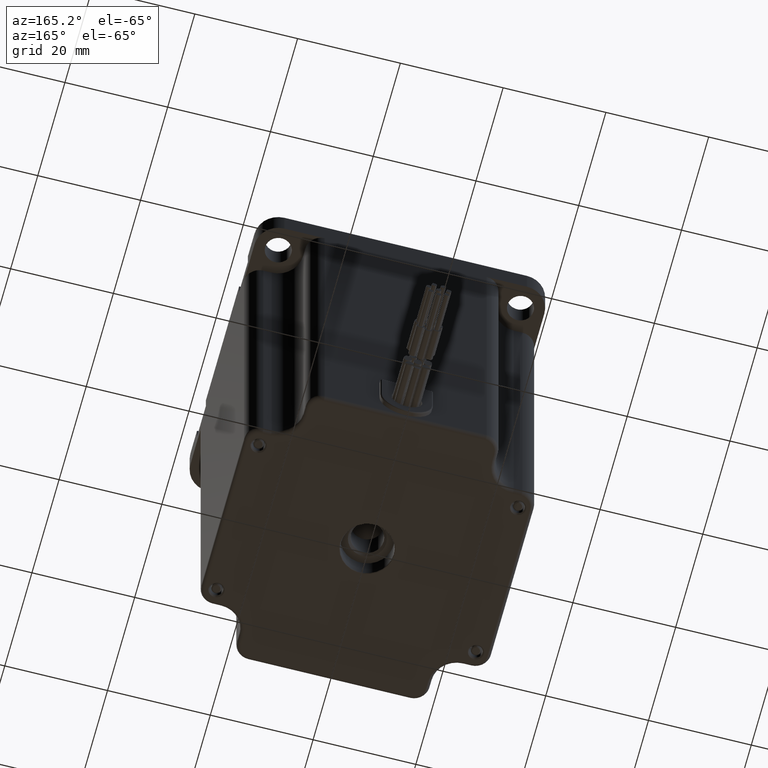
[diagram: clean part render]
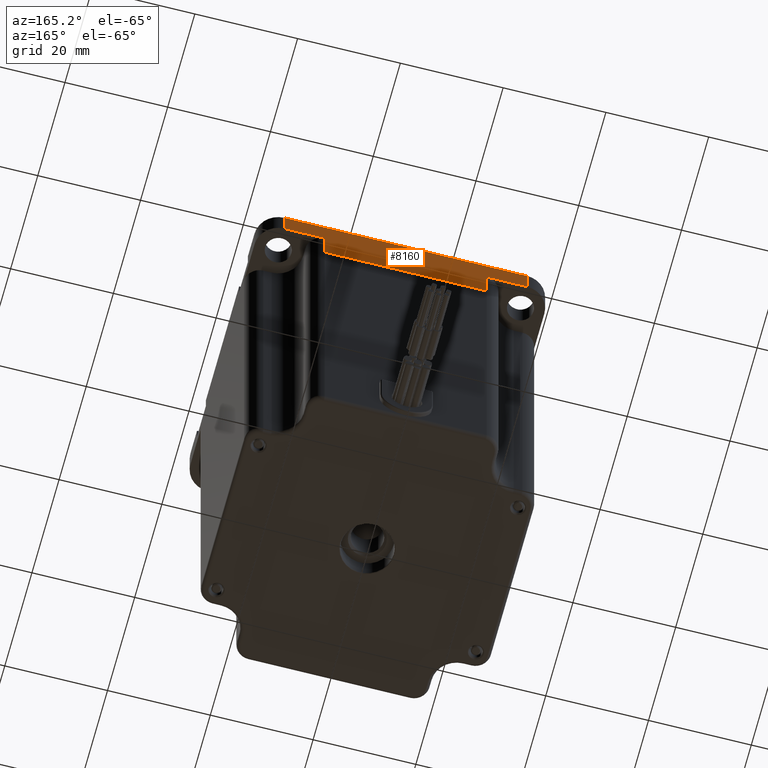
[diagram: same view with one face highlighted and labeled with its STEP entity id]
A machine part, auxiliary view. The second image highlights one B-rep face of the part: STEP entity #8160.
In plain terms, the highlighted planar face has unit normal (-0, 1, 0).
Its self-contained STEP definition (entity closure, byte-faithful):
#119 = CARTESIAN_POINT ( 'NONE',  ( 28.19999999999999900, 28.19999999999999600, -11.00000000000000000 ) ) ;
#144 = LINE ( 'NONE', #7201, #11866 ) ;
#216 = CARTESIAN_POINT ( 'NONE',  ( -15.75000000000000700, 28.19999999999998900, -4.799999999999999800 ) ) ;
#728 = DIRECTION ( 'NONE',  ( -0.0000000000000000000, -0.0000000000000000000, -1.000000000000000000 ) ) ;
#966 = EDGE_LOOP ( 'NONE', ( #1656, #4349, #4482, #4250, #2900, #3597, #7006, #6619 ) ) ;
#969 = CARTESIAN_POINT ( 'NONE',  ( 23.59999999999999800, 28.19999999999999600, 0.0000000000000000000 ) ) ;
#990 = CARTESIAN_POINT ( 'NONE',  ( 15.75000000000000000, 28.19999999999999600, -11.00000000000000000 ) ) ;
#1039 = VECTOR ( 'NONE', #12090, 1000.000000000000000 ) ;
#1176 = FACE_OUTER_BOUND ( 'NONE', #966, .T. ) ;
#1369 = LINE ( 'NONE', #2051, #11330 ) ;
#1539 = EDGE_CURVE ( 'NONE', #10358, #1613, #2110, .T. ) ;
#1575 = DIRECTION ( 'NONE',  ( 0.0000000000000000000, 0.0000000000000000000, 1.000000000000000000 ) ) ;
#1579 = DIRECTION ( 'NONE',  ( -0.0000000000000000000, -0.0000000000000000000, 1.000000000000000000 ) ) ;
#1607 = EDGE_CURVE ( 'NONE', #10611, #5631, #11637, .T. ) ;
#1613 = VERTEX_POINT ( 'NONE', #9077 ) ;
#1656 = ORIENTED_EDGE ( 'NONE', *, *, #6155, .F. ) ;
#1670 = CARTESIAN_POINT ( 'NONE',  ( 28.19999999999999900, 28.19999999999999600, -11.00000000000000000 ) ) ;
#1672 = VECTOR ( 'NONE', #1579, 1000.000000000000000 ) ;
#1696 = CARTESIAN_POINT ( 'NONE',  ( 28.19999999999999900, 28.19999999999999600, 0.0000000000000000000 ) ) ;
#1818 = DIRECTION ( 'NONE',  ( 1.000000000000000000, 0.0000000000000000000, 0.0000000000000000000 ) ) ;
#2051 = CARTESIAN_POINT ( 'NONE',  ( 23.59999999999999800, 28.19999999999999600, -11.00000000000000000 ) ) ;
#2110 = LINE ( 'NONE', #1696, #6077 ) ;
#2232 = LINE ( 'NONE', #3399, #6919 ) ;
#2248 = CARTESIAN_POINT ( 'NONE',  ( 23.59999999999999800, 28.19999999999999900, -4.799999999999999800 ) ) ;
#2445 = DIRECTION ( 'NONE',  ( 1.000000000000000000, -0.0000000000000000000, -0.0000000000000000000 ) ) ;
#2900 = ORIENTED_EDGE ( 'NONE', *, *, #5253, .F. ) ;
#3095 = VERTEX_POINT ( 'NONE', #2248 ) ;
#3199 = EDGE_CURVE ( 'NONE', #10885, #1613, #144, .T. ) ;
#3399 = CARTESIAN_POINT ( 'NONE',  ( 15.75000000000000000, 28.19999999999999600, -11.00000000000000000 ) ) ;
#3597 = ORIENTED_EDGE ( 'NONE', *, *, #7484, .T. ) ;
#4250 = ORIENTED_EDGE ( 'NONE', *, *, #6793, .T. ) ;
#4271 = DIRECTION ( 'NONE',  ( -0.0000000000000000000, -0.0000000000000000000, -1.000000000000000000 ) ) ;
#4349 = ORIENTED_EDGE ( 'NONE', *, *, #3199, .T. ) ;
#4442 = AXIS2_PLACEMENT_3D ( 'NONE', #119, #10433, #4836 ) ;
#4482 = ORIENTED_EDGE ( 'NONE', *, *, #1539, .F. ) ;
#4836 = DIRECTION ( 'NONE',  ( -1.000000000000000000, -1.230300337572203900E-016, 0.0000000000000000000 ) ) ;
#4845 = LINE ( 'NONE', #1670, #1039 ) ;
#5041 = VERTEX_POINT ( 'NONE', #6812 ) ;
#5253 = EDGE_CURVE ( 'NONE', #5041, #3095, #5927, .T. ) ;
#5338 = VECTOR ( 'NONE', #2445, 1000.000000000000000 ) ;
#5631 = VERTEX_POINT ( 'NONE', #216 ) ;
#5927 = LINE ( 'NONE', #11798, #5338 ) ;
#6077 = VECTOR ( 'NONE', #6372, 1000.000000000000000 ) ;
#6155 = EDGE_CURVE ( 'NONE', #10885, #5631, #10585, .T. ) ;
#6216 = VECTOR ( 'NONE', #1818, 1000.000000000000000 ) ;
#6328 = CARTESIAN_POINT ( 'NONE',  ( -15.75000000000000400, 28.19999999999998900, -11.00000000000000000 ) ) ;
#6372 = DIRECTION ( 'NONE',  ( -1.000000000000000000, -1.230300337572203600E-016, 0.0000000000000000000 ) ) ;
#6619 = ORIENTED_EDGE ( 'NONE', *, *, #1607, .T. ) ;
#6793 = EDGE_CURVE ( 'NONE', #10358, #3095, #1369, .T. ) ;
#6812 = CARTESIAN_POINT ( 'NONE',  ( 15.75000000000000000, 28.19999999999999600, -4.799999999999999800 ) ) ;
#6919 = VECTOR ( 'NONE', #728, 1000.000000000000000 ) ;
#7006 = ORIENTED_EDGE ( 'NONE', *, *, #11628, .T. ) ;
#7201 = CARTESIAN_POINT ( 'NONE',  ( -23.59999999999999800, 28.19999999999998900, -11.00000000000000000 ) ) ;
#7484 = EDGE_CURVE ( 'NONE', #5041, #8237, #2232, .T. ) ;
#8160 = ADVANCED_FACE ( 'NONE', ( #1176 ), #11312, .T. ) ;
#8237 = VERTEX_POINT ( 'NONE', #990 ) ;
#9077 = CARTESIAN_POINT ( 'NONE',  ( -23.59999999999999800, 28.19999999999998900, 0.0000000000000000000 ) ) ;
#9351 = CARTESIAN_POINT ( 'NONE',  ( -28.19999999999999900, 28.19999999999998900, -4.799999999999999800 ) ) ;
#9916 = CARTESIAN_POINT ( 'NONE',  ( -23.59999999999999800, 28.19999999999998900, -4.799999999999999800 ) ) ;
#10358 = VERTEX_POINT ( 'NONE', #969 ) ;
#10433 = DIRECTION ( 'NONE',  ( -1.230300337572203900E-016, 1.000000000000000000, 0.0000000000000000000 ) ) ;
#10585 = LINE ( 'NONE', #9351, #6216 ) ;
#10611 = VERTEX_POINT ( 'NONE', #6328 ) ;
#10885 = VERTEX_POINT ( 'NONE', #9916 ) ;
#10907 = CARTESIAN_POINT ( 'NONE',  ( -15.75000000000000700, 28.19999999999998900, -4.799999999999999800 ) ) ;
#11312 = PLANE ( 'NONE',  #4442 ) ;
#11330 = VECTOR ( 'NONE', #4271, 1000.000000000000000 ) ;
#11628 = EDGE_CURVE ( 'NONE', #8237, #10611, #4845, .T. ) ;
#11637 = LINE ( 'NONE', #10907, #1672 ) ;
#11798 = CARTESIAN_POINT ( 'NONE',  ( 18.75000000000000000, 28.19999999999999900, -4.799999999999999800 ) ) ;
#11866 = VECTOR ( 'NONE', #1575, 1000.000000000000000 ) ;
#12090 = DIRECTION ( 'NONE',  ( -1.000000000000000000, -1.230300337572203600E-016, 0.0000000000000000000 ) ) ;